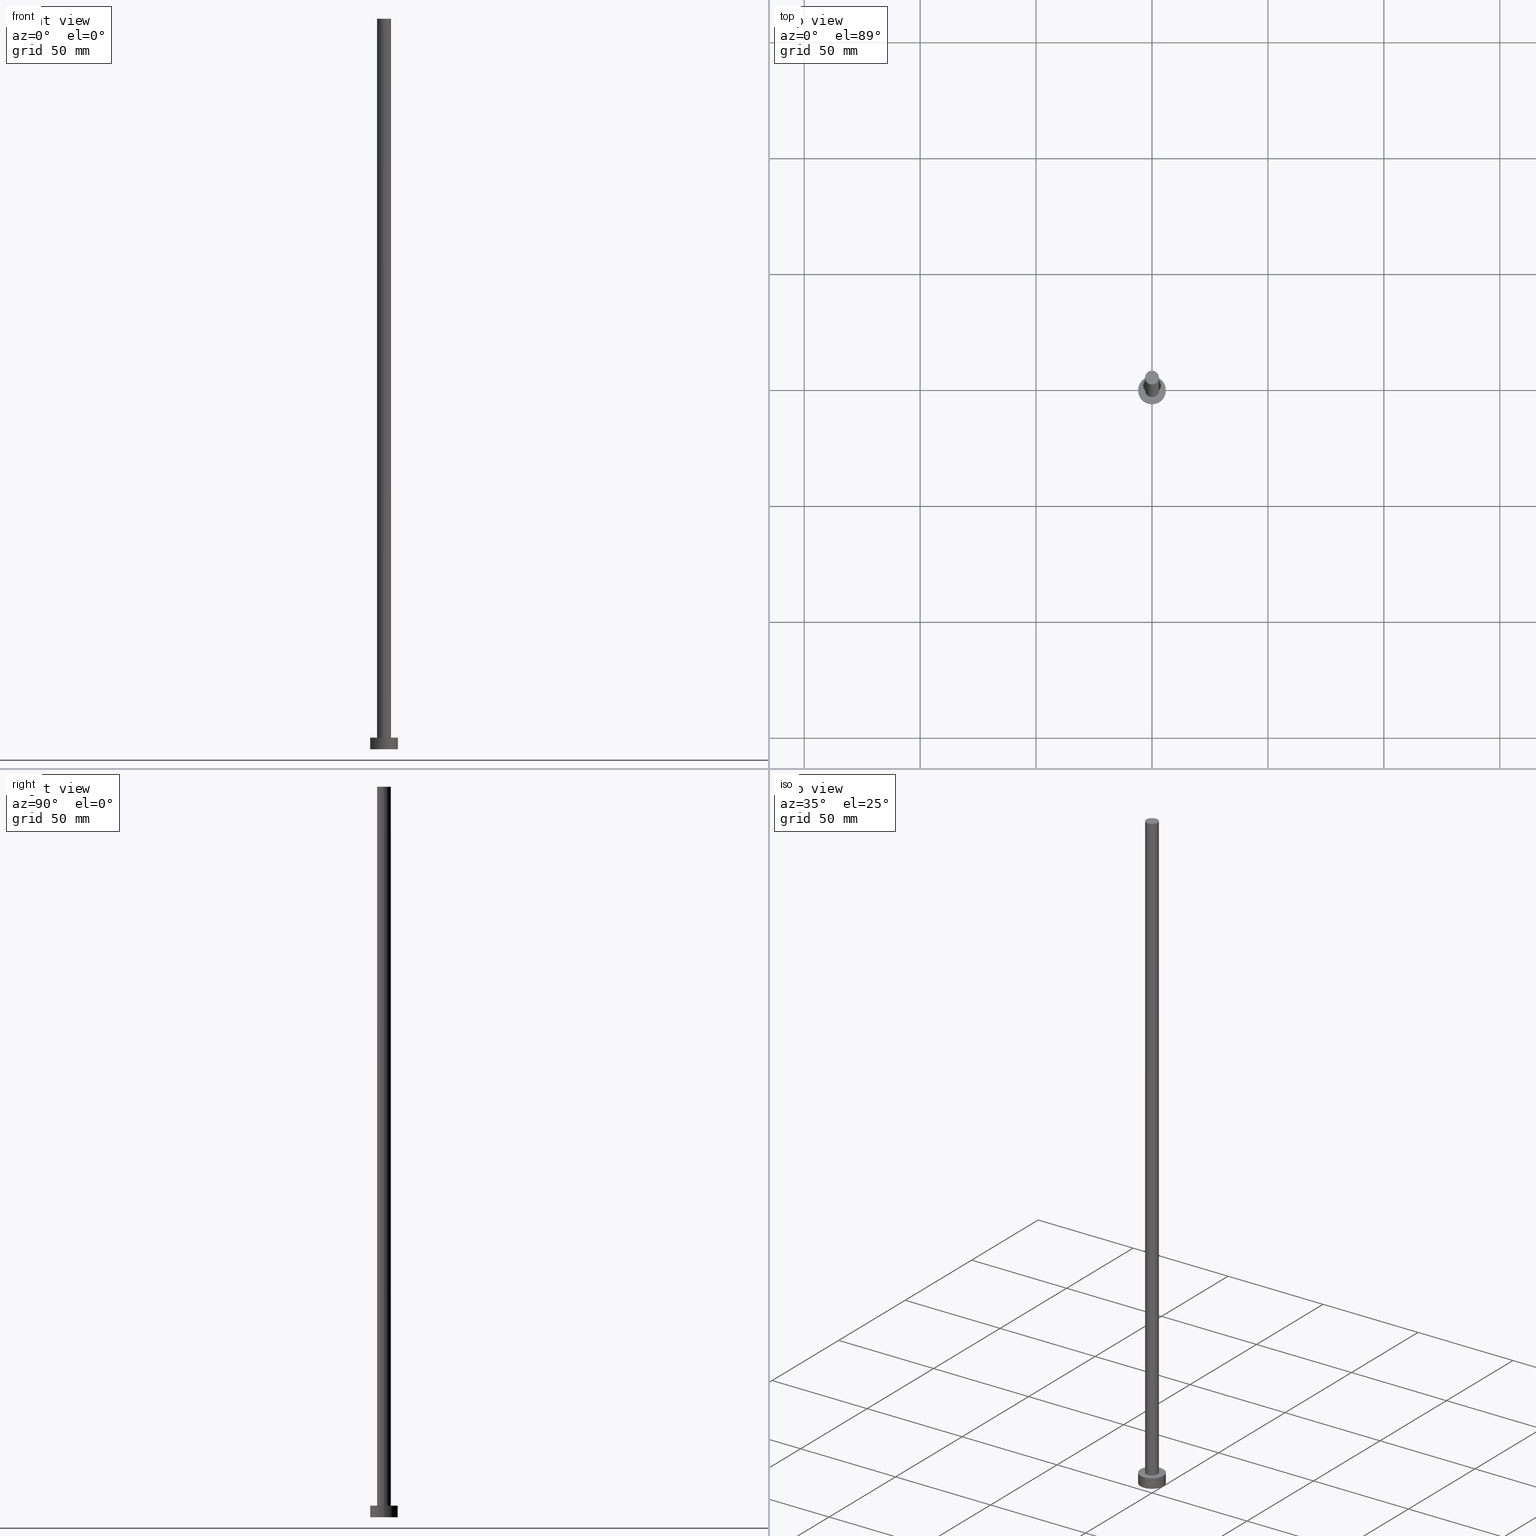
[diagram: canonical four-view strip — front | top / right | iso, engineering-drawing reading convention]
A machine part, canonical four-view strip (front | top / right | iso — engineering-drawing reading convention). The complete STEP part file that produces these views, byte-faithful:
ISO-10303-21;
HEADER;
FILE_DESCRIPTION (( 'STEP AP203' ),
    '1' );
FILE_NAME ('d4da.STEP',
    '2023-02-13T15:21:51',
    ( '' ),
    ( '' ),
    'SwSTEP 2.0',
    'SolidWorks 2019',
    '' );
FILE_SCHEMA (( 'CONFIG_CONTROL_DESIGN' ));
ENDSEC;

DATA;
#1 = DIRECTION ( 'NONE',  ( 0.000000000000000000, 0.000000000000000000, 1.000000000000000000 ) ) ;
#2 = CARTESIAN_POINT ( 'NONE',  ( 0.000000000000000000, 0.000000000000000000, 5.000000000000000000 ) ) ;
#3 = AXIS2_PLACEMENT_3D ( 'NONE', #29, #1, #170 ) ;
#4 = APPROVAL_DATE_TIME ( #192, #25 ) ;
#5 = CC_DESIGN_DATE_AND_TIME_ASSIGNMENT ( #66, #22, ( #185 ) ) ;
#6 = CALENDAR_DATE ( 2023, 13, 2 ) ;
#7 = CARTESIAN_POINT ( 'NONE',  ( 0.000000000000000000, 0.000000000000000000, 0.000000000000000000 ) ) ;
#8 = ADVANCED_FACE ( 'NONE', ( #31 ), #195, .F. ) ;
#9 = CYLINDRICAL_SURFACE ( 'NONE', #71, 3.000000000000000444 ) ;
#10 = ORIENTED_EDGE ( 'NONE', *, *, #92, .T. ) ;
#11 = DIRECTION ( 'NONE',  ( -1.000000000000000000, 0.000000000000000000, 0.000000000000000000 ) ) ;
#12 = DIRECTION ( 'NONE',  ( 1.000000000000000000, 0.000000000000000000, 0.000000000000000000 ) ) ;
#13 = FACE_OUTER_BOUND ( 'NONE', #183, .T. ) ;
#14 = ORIENTED_EDGE ( 'NONE', *, *, #161, .T. ) ;
#15 = CARTESIAN_POINT ( 'NONE',  ( 0.000000000000000000, 0.000000000000000000, 315.0000000000000000 ) ) ;
#16 = PRODUCT ( 'd4da', 'd4da', '', ( #51 ) ) ;
#17 = ORIENTED_EDGE ( 'NONE', *, *, #239, .T. ) ;
#18 = CARTESIAN_POINT ( 'NONE',  ( 0.000000000000000000, 0.000000000000000000, 0.000000000000000000 ) ) ;
#19 = CC_DESIGN_PERSON_AND_ORGANIZATION_ASSIGNMENT ( #243, #120, ( #185 ) ) ;
#20 = COORDINATED_UNIVERSAL_TIME_OFFSET ( 1, 0, .AHEAD. ) ;
#21 = FACE_OUTER_BOUND ( 'NONE', #118, .T. ) ;
#22 = DATE_TIME_ROLE ( 'classification_date' ) ;
#23 = APPROVAL ( #218, 'NEUR�EN�' ) ;
#24 = DIRECTION ( 'NONE',  ( -1.000000000000000000, 0.000000000000000000, 0.000000000000000000 ) ) ;
#25 = APPROVAL ( #138, 'NEUR�EN�' ) ;
#26 = DIRECTION ( 'NONE',  ( 1.000000000000000000, 0.000000000000000000, 0.000000000000000000 ) ) ;
#27 = VECTOR ( 'NONE', #178, 1000.000000000000000 ) ;
#28 = EDGE_CURVE ( 'NONE', #84, #98, #78, .T. ) ;
#29 = CARTESIAN_POINT ( 'NONE',  ( 0.000000000000000000, 0.000000000000000000, 5.000000000000000000 ) ) ;
#30 = DIRECTION ( 'NONE',  ( -0.000000000000000000, -0.000000000000000000, -1.000000000000000000 ) ) ;
#31 = FACE_OUTER_BOUND ( 'NONE', #160, .T. ) ;
#32 = EDGE_CURVE ( 'NONE', #40, #197, #144, .T. ) ;
#33 = CLOSED_SHELL ( 'NONE', ( #189, #90, #225, #238, #8, #231, #191 ) ) ;
#34 = LINE ( 'NONE', #117, #255 ) ;
#35 = ORIENTED_EDGE ( 'NONE', *, *, #32, .T. ) ;
#36 = APPROVAL_PERSON_ORGANIZATION ( #115, #165, #177 ) ;
#37 = PRODUCT_DEFINITION_FORMATION_WITH_SPECIFIED_SOURCE ( 'LIBOVOLN�', '', #16, .NOT_KNOWN. ) ;
#38 = CC_DESIGN_PERSON_AND_ORGANIZATION_ASSIGNMENT ( #55, #233, ( #16 ) ) ;
#39 = CARTESIAN_POINT ( 'NONE',  ( 3.000000000000000444, 3.673940397442060361E-16, 5.000000000000000000 ) ) ;
#40 = VERTEX_POINT ( 'NONE', #219 ) ;
#41 = DIRECTION ( 'NONE',  ( -0.000000000000000000, -0.000000000000000000, -1.000000000000000000 ) ) ;
#42 = CARTESIAN_POINT ( 'NONE',  ( 0.000000000000000000, 0.000000000000000000, 0.000000000000000000 ) ) ;
#43 = EDGE_CURVE ( 'NONE', #197, #40, #210, .T. ) ;
#44 = FACE_OUTER_BOUND ( 'NONE', #140, .T. ) ;
#45 = AXIS2_PLACEMENT_3D ( 'NONE', #194, #30, #11 ) ;
#46 = FACE_OUTER_BOUND ( 'NONE', #99, .T. ) ;
#47 = DIRECTION ( 'NONE',  ( 1.000000000000000000, 0.000000000000000000, 0.000000000000000000 ) ) ;
#48 = EDGE_CURVE ( 'NONE', #137, #98, #206, .T. ) ;
#49 = DIRECTION ( 'NONE',  ( 1.000000000000000000, 0.000000000000000000, 0.000000000000000000 ) ) ;
#50 = PERSON ( 'NEUR�EN�', 'NEUR�EN�', 'NEUR�EN�', ('NEUR�EN�'), ('NEUR�EN�'), ('NEUR�EN�') ) ;
#51 = MECHANICAL_CONTEXT ( 'NONE', #107, 'mechanical' ) ;
#52 = FACE_OUTER_BOUND ( 'NONE', #234, .T. ) ;
#53 = PRODUCT_RELATED_PRODUCT_CATEGORY ( 'detail', '', ( #16 ) ) ;
#54 = ORIENTED_EDGE ( 'NONE', *, *, #168, .F. ) ;
#55 = PERSON_AND_ORGANIZATION ( #50, #109 ) ;
#56 = LINE ( 'NONE', #62, #27 ) ;
#57 = DIRECTION ( 'NONE',  ( -0.000000000000000000, -0.000000000000000000, -1.000000000000000000 ) ) ;
#58 = DIRECTION ( 'NONE',  ( 1.000000000000000000, 0.000000000000000000, 0.000000000000000000 ) ) ;
#59 = ORIENTED_EDGE ( 'NONE', *, *, #32, .F. ) ;
#60 = EDGE_CURVE ( 'NONE', #100, #249, #167, .T. ) ;
#61 = CALENDAR_DATE ( 2023, 13, 2 ) ;
#62 = CARTESIAN_POINT ( 'NONE',  ( -3.000000000000000444, 0.000000000000000000, 315.0000000000000000 ) ) ;
#63 = ORIENTED_EDGE ( 'NONE', *, *, #69, .T. ) ;
#64 = ORIENTED_EDGE ( 'NONE', *, *, #161, .F. ) ;
#65 = CARTESIAN_POINT ( 'NONE',  ( 0.000000000000000000, 0.000000000000000000, 315.0000000000000000 ) ) ;
#66 = DATE_AND_TIME ( #223, #207 ) ;
#67 = CARTESIAN_POINT ( 'NONE',  ( 0.000000000000000000, 0.000000000000000000, 5.000000000000000000 ) ) ;
#68 = EDGE_CURVE ( 'NONE', #98, #137, #201, .T. ) ;
#69 = EDGE_CURVE ( 'NONE', #200, #137, #56, .T. ) ;
#70 = AXIS2_PLACEMENT_3D ( 'NONE', #18, #143, #124 ) ;
#71 = AXIS2_PLACEMENT_3D ( 'NONE', #121, #226, #141 ) ;
#72 = APPROVAL_PERSON_ORGANIZATION ( #135, #25, #213 ) ;
#73 = PERSON_AND_ORGANIZATION_ROLE ( 'creator' ) ;
#74 = LINE ( 'NONE', #174, #227 ) ;
#75 = CIRCLE ( 'NONE', #83, 3.000000000000000444 ) ;
#76 = DIRECTION ( 'NONE',  ( 1.000000000000000000, 0.000000000000000000, -0.000000000000000000 ) ) ;
#77 = CARTESIAN_POINT ( 'NONE',  ( 0.000000000000000000, 0.000000000000000000, 0.000000000000000000 ) ) ;
#78 = LINE ( 'NONE', #156, #85 ) ;
#79 = CARTESIAN_POINT ( 'NONE',  ( 0.000000000000000000, 0.000000000000000000, 5.000000000000000000 ) ) ;
#80 = ORIENTED_EDGE ( 'NONE', *, *, #48, .F. ) ;
#81 = APPROVAL_DATE_TIME ( #245, #165 ) ;
#82 = ORIENTED_EDGE ( 'NONE', *, *, #43, .F. ) ;
#83 = AXIS2_PLACEMENT_3D ( 'NONE', #15, #103, #182 ) ;
#84 = VERTEX_POINT ( 'NONE', #136 ) ;
#85 = VECTOR ( 'NONE', #57, 1000.000000000000000 ) ;
#86 = DIRECTION ( 'NONE',  ( 1.000000000000000000, 0.000000000000000000, 0.000000000000000000 ) ) ;
#87 = AXIS2_PLACEMENT_3D ( 'NONE', #208, #128, #26 ) ;
#88 = APPROVAL_DATE_TIME ( #253, #23 ) ;
#89 = DIRECTION ( 'NONE',  ( 0.000000000000000000, 0.000000000000000000, 1.000000000000000000 ) ) ;
#90 = ADVANCED_FACE ( 'NONE', ( #13 ), #139, .T. ) ;
#91 = DIRECTION ( 'NONE',  ( 0.000000000000000000, 0.000000000000000000, 1.000000000000000000 ) ) ;
#92 = EDGE_CURVE ( 'NONE', #100, #197, #34, .T. ) ;
#93 = AXIS2_PLACEMENT_3D ( 'NONE', #2, #242, #49 ) ;
#94 = COORDINATED_UNIVERSAL_TIME_OFFSET ( 1, 0, .AHEAD. ) ;
#95 = APPROVAL_PERSON_ORGANIZATION ( #251, #23, #108 ) ;
#96 = SECURITY_CLASSIFICATION_LEVEL ( 'unclassified' ) ;
#97 = CARTESIAN_POINT ( 'NONE',  ( -3.000000000000000444, 0.000000000000000000, 5.000000000000000000 ) ) ;
#98 = VERTEX_POINT ( 'NONE', #39 ) ;
#99 = EDGE_LOOP ( 'NONE', ( #17, #14 ) ) ;
#100 = VERTEX_POINT ( 'NONE', #131 ) ;
#101 = APPLICATION_PROTOCOL_DEFINITION ( 'international standard', 'config_control_design', 1994, #107 ) ;
#102 = ORIENTED_EDGE ( 'NONE', *, *, #28, .T. ) ;
#103 = DIRECTION ( 'NONE',  ( 0.000000000000000000, 0.000000000000000000, 1.000000000000000000 ) ) ;
#104 = ORIENTED_EDGE ( 'NONE', *, *, #68, .T. ) ;
#105 = AXIS2_PLACEMENT_3D ( 'NONE', #67, #224, #24 ) ;
#106 = CYLINDRICAL_SURFACE ( 'NONE', #105, 6.000000000000000888 ) ;
#107 = APPLICATION_CONTEXT ( 'configuration controlled 3d designs of mechanical parts and assemblies' ) ;
#108 = APPROVAL_ROLE ( '' ) ;
#109 = ORGANIZATION ( 'NEUR�EN�', 'NEUR�EN�', '' ) ;
#110 =( NAMED_UNIT ( * ) SI_UNIT ( $, .STERADIAN. ) SOLID_ANGLE_UNIT ( ) );
#111 = DIRECTION ( 'NONE',  ( 1.000000000000000000, 0.000000000000000000, 0.000000000000000000 ) ) ;
#112 = AXIS2_PLACEMENT_3D ( 'NONE', #250, #237, #159 ) ;
#113 = DIRECTION ( 'NONE',  ( 0.000000000000000000, 0.000000000000000000, 1.000000000000000000 ) ) ;
#114 = LOCAL_TIME ( 16, 21, 51.00000000000000000, #214 ) ;
#115 = PERSON_AND_ORGANIZATION ( #50, #109 ) ;
#116 = ORIENTED_EDGE ( 'NONE', *, *, #168, .T. ) ;
#117 = CARTESIAN_POINT ( 'NONE',  ( -6.000000000000000888, 0.000000000000000000, 5.000000000000000000 ) ) ;
#118 = EDGE_LOOP ( 'NONE', ( #54, #180, #10, #175 ) ) ;
#119 = CC_DESIGN_DATE_AND_TIME_ASSIGNMENT ( #193, #132, ( #181 ) ) ;
#120 = PERSON_AND_ORGANIZATION_ROLE ( 'classification_officer' ) ;
#121 = CARTESIAN_POINT ( 'NONE',  ( 0.000000000000000000, 0.000000000000000000, 315.0000000000000000 ) ) ;
#122 = FACE_BOUND ( 'NONE', #142, .T. ) ;
#123 = AXIS2_PLACEMENT_3D ( 'NONE', #65, #41, #205 ) ;
#124 = DIRECTION ( 'NONE',  ( 1.000000000000000000, 0.000000000000000000, 0.000000000000000000 ) ) ;
#125 = MANIFOLD_SOLID_BREP ( 'P�idat vysunut�m3', #33 ) ;
#126 = AXIS2_PLACEMENT_3D ( 'NONE', #79, #199, #58 ) ;
#127 = CARTESIAN_POINT ( 'NONE',  ( 6.000000000000000888, 7.347880794884120722E-16, 5.000000000000000000 ) ) ;
#128 = DIRECTION ( 'NONE',  ( 0.000000000000000000, 0.000000000000000000, 1.000000000000000000 ) ) ;
#129 = CC_DESIGN_PERSON_AND_ORGANIZATION_ASSIGNMENT ( #232, #157, ( #181 ) ) ;
#130 = PERSON_AND_ORGANIZATION_ROLE ( 'design_supplier' ) ;
#131 = CARTESIAN_POINT ( 'NONE',  ( -6.000000000000000888, 0.000000000000000000, 5.000000000000000000 ) ) ;
#132 = DATE_TIME_ROLE ( 'creation_date' ) ;
#133 = CIRCLE ( 'NONE', #87, 6.000000000000000888 ) ;
#134 = ORIENTED_EDGE ( 'NONE', *, *, #28, .F. ) ;
#135 = PERSON_AND_ORGANIZATION ( #50, #109 ) ;
#136 = CARTESIAN_POINT ( 'NONE',  ( 3.000000000000000444, 3.673940397442060361E-16, 315.0000000000000000 ) ) ;
#137 = VERTEX_POINT ( 'NONE', #97 ) ;
#138 = APPROVAL_STATUS ( 'not_yet_approved' ) ;
#139 = CYLINDRICAL_SURFACE ( 'NONE', #45, 6.000000000000000888 ) ;
#140 = EDGE_LOOP ( 'NONE', ( #134, #158, #63, #176 ) ) ;
#141 = DIRECTION ( 'NONE',  ( -1.000000000000000000, 0.000000000000000000, 0.000000000000000000 ) ) ;
#142 = EDGE_LOOP ( 'NONE', ( #80, #198 ) ) ;
#143 = DIRECTION ( 'NONE',  ( 0.000000000000000000, 0.000000000000000000, 1.000000000000000000 ) ) ;
#144 = CIRCLE ( 'NONE', #70, 6.000000000000000888 ) ;
#145 = PLANE ( 'NONE',  #112 ) ;
#146 = CIRCLE ( 'NONE', #203, 3.000000000000000444 ) ;
#147 = CC_DESIGN_PERSON_AND_ORGANIZATION_ASSIGNMENT ( #171, #73, ( #37 ) ) ;
#148 = CARTESIAN_POINT ( 'NONE',  ( 0.000000000000000000, 0.000000000000000000, 315.0000000000000000 ) ) ;
#149 = CC_DESIGN_APPROVAL ( #25, ( #37 ) ) ;
#150 = AXIS2_PLACEMENT_3D ( 'NONE', #77, #113, #12 ) ;
#151 = LOCAL_TIME ( 16, 21, 51.00000000000000000, #94 ) ;
#152 = APPLICATION_CONTEXT ( 'configuration controlled 3d designs of mechanical parts and assemblies' ) ;
#153 = PERSON_AND_ORGANIZATION ( #50, #109 ) ;
#154 = DIRECTION ( 'NONE',  ( -0.000000000000000000, -0.000000000000000000, -1.000000000000000000 ) ) ;
#155 = CALENDAR_DATE ( 2023, 13, 2 ) ;
#156 = CARTESIAN_POINT ( 'NONE',  ( 3.000000000000000444, 3.673940397442060361E-16, 315.0000000000000000 ) ) ;
#157 = PERSON_AND_ORGANIZATION_ROLE ( 'creator' ) ;
#158 = ORIENTED_EDGE ( 'NONE', *, *, #239, .F. ) ;
#159 = DIRECTION ( 'NONE',  ( 1.000000000000000000, 0.000000000000000000, -0.000000000000000000 ) ) ;
#160 = EDGE_LOOP ( 'NONE', ( #82, #59 ) ) ;
#161 = EDGE_CURVE ( 'NONE', #84, #200, #75, .T. ) ;
#162 = PRODUCT_DEFINITION_SHAPE ( 'NONE', 'NONE',  #181 ) ;
#163 = SHAPE_DEFINITION_REPRESENTATION ( #162, #236 ) ;
#164 = CARTESIAN_POINT ( 'NONE',  ( 0.000000000000000000, 0.000000000000000000, 5.000000000000000000 ) ) ;
#165 = APPROVAL ( #196, 'NEUR�EN�' ) ;
#166 = PLANE ( 'NONE',  #3 ) ;
#167 = CIRCLE ( 'NONE', #93, 6.000000000000000888 ) ;
#168 = EDGE_CURVE ( 'NONE', #249, #40, #74, .T. ) ;
#169 = AXIS2_PLACEMENT_3D ( 'NONE', #42, #89, #86 ) ;
#170 = DIRECTION ( 'NONE',  ( 1.000000000000000000, 0.000000000000000000, -0.000000000000000000 ) ) ;
#171 = PERSON_AND_ORGANIZATION ( #50, #109 ) ;
#172 = CC_DESIGN_APPROVAL ( #165, ( #181 ) ) ;
#173 = APPLICATION_PROTOCOL_DEFINITION ( 'international standard', 'config_control_design', 1994, #152 ) ;
#174 = CARTESIAN_POINT ( 'NONE',  ( 6.000000000000000888, 7.347880794884120722E-16, 5.000000000000000000 ) ) ;
#175 = ORIENTED_EDGE ( 'NONE', *, *, #43, .T. ) ;
#176 = ORIENTED_EDGE ( 'NONE', *, *, #48, .T. ) ;
#177 = APPROVAL_ROLE ( '' ) ;
#178 = DIRECTION ( 'NONE',  ( -0.000000000000000000, -0.000000000000000000, -1.000000000000000000 ) ) ;
#179 = ORIENTED_EDGE ( 'NONE', *, *, #252, .T. ) ;
#180 = ORIENTED_EDGE ( 'NONE', *, *, #60, .F. ) ;
#181 = PRODUCT_DEFINITION ( 'NEZN�M�', '', #37, #228 ) ;
#182 = DIRECTION ( 'NONE',  ( 1.000000000000000000, 0.000000000000000000, 0.000000000000000000 ) ) ;
#183 = EDGE_LOOP ( 'NONE', ( #248, #116, #35, #229 ) ) ;
#184 = CYLINDRICAL_SURFACE ( 'NONE', #123, 3.000000000000000444 ) ;
#185 = SECURITY_CLASSIFICATION ( '', '', #96 ) ;
#186 = COORDINATED_UNIVERSAL_TIME_OFFSET ( 1, 0, .AHEAD. ) ;
#187 = AXIS2_PLACEMENT_3D ( 'NONE', #7, #244, #76 ) ;
#188 = CALENDAR_DATE ( 2023, 13, 2 ) ;
#189 = ADVANCED_FACE ( 'NONE', ( #52 ), #9, .T. ) ;
#190 = AXIS2_PLACEMENT_3D ( 'NONE', #164, #91, #111 ) ;
#191 = ADVANCED_FACE ( 'NONE', ( #46 ), #145, .T. ) ;
#192 = DATE_AND_TIME ( #6, #114 ) ;
#193 = DATE_AND_TIME ( #61, #151 ) ;
#194 = CARTESIAN_POINT ( 'NONE',  ( 0.000000000000000000, 0.000000000000000000, 5.000000000000000000 ) ) ;
#195 = PLANE ( 'NONE',  #187 ) ;
#196 = APPROVAL_STATUS ( 'not_yet_approved' ) ;
#197 = VERTEX_POINT ( 'NONE', #221 ) ;
#198 = ORIENTED_EDGE ( 'NONE', *, *, #68, .F. ) ;
#199 = DIRECTION ( 'NONE',  ( 0.000000000000000000, 0.000000000000000000, 1.000000000000000000 ) ) ;
#200 = VERTEX_POINT ( 'NONE', #217 ) ;
#201 = CIRCLE ( 'NONE', #126, 3.000000000000000444 ) ;
#202 = FACE_OUTER_BOUND ( 'NONE', #216, .T. ) ;
#203 = AXIS2_PLACEMENT_3D ( 'NONE', #148, #254, #47 ) ;
#204 = LOCAL_TIME ( 16, 21, 51.00000000000000000, #20 ) ;
#205 = DIRECTION ( 'NONE',  ( -1.000000000000000000, 0.000000000000000000, 0.000000000000000000 ) ) ;
#206 = CIRCLE ( 'NONE', #190, 3.000000000000000444 ) ;
#207 = LOCAL_TIME ( 16, 21, 51.00000000000000000, #186 ) ;
#208 = CARTESIAN_POINT ( 'NONE',  ( 0.000000000000000000, 0.000000000000000000, 5.000000000000000000 ) ) ;
#209 =( GEOMETRIC_REPRESENTATION_CONTEXT ( 3 ) GLOBAL_UNCERTAINTY_ASSIGNED_CONTEXT ( ( #247 ) ) GLOBAL_UNIT_ASSIGNED_CONTEXT ( ( #240, #241, #110 ) ) REPRESENTATION_CONTEXT ( 'NONE', 'WORKASPACE' ) );
#210 = CIRCLE ( 'NONE', #169, 6.000000000000000888 ) ;
#211 = COORDINATED_UNIVERSAL_TIME_OFFSET ( 1, 0, .AHEAD. ) ;
#212 = CC_DESIGN_SECURITY_CLASSIFICATION ( #185, ( #37 ) ) ;
#213 = APPROVAL_ROLE ( '' ) ;
#214 = COORDINATED_UNIVERSAL_TIME_OFFSET ( 1, 0, .AHEAD. ) ;
#215 = DIRECTION ( 'NONE',  ( -0.000000000000000000, -0.000000000000000000, -1.000000000000000000 ) ) ;
#216 = EDGE_LOOP ( 'NONE', ( #230, #179 ) ) ;
#217 = CARTESIAN_POINT ( 'NONE',  ( -3.000000000000000444, 0.000000000000000000, 315.0000000000000000 ) ) ;
#218 = APPROVAL_STATUS ( 'not_yet_approved' ) ;
#219 = CARTESIAN_POINT ( 'NONE',  ( 6.000000000000000888, 7.347880794884120722E-16, 0.000000000000000000 ) ) ;
#220 = CC_DESIGN_PERSON_AND_ORGANIZATION_ASSIGNMENT ( #153, #130, ( #37 ) ) ;
#221 = CARTESIAN_POINT ( 'NONE',  ( -6.000000000000000888, 0.000000000000000000, 0.000000000000000000 ) ) ;
#222 = LOCAL_TIME ( 16, 21, 51.00000000000000000, #211 ) ;
#223 = CALENDAR_DATE ( 2023, 13, 2 ) ;
#224 = DIRECTION ( 'NONE',  ( -0.000000000000000000, -0.000000000000000000, -1.000000000000000000 ) ) ;
#225 = ADVANCED_FACE ( 'NONE', ( #21 ), #106, .T. ) ;
#226 = DIRECTION ( 'NONE',  ( -0.000000000000000000, -0.000000000000000000, -1.000000000000000000 ) ) ;
#227 = VECTOR ( 'NONE', #154, 1000.000000000000000 ) ;
#228 = DESIGN_CONTEXT ( 'detailed design', #152, 'design' ) ;
#229 = ORIENTED_EDGE ( 'NONE', *, *, #92, .F. ) ;
#230 = ORIENTED_EDGE ( 'NONE', *, *, #60, .T. ) ;
#231 = ADVANCED_FACE ( 'NONE', ( #44 ), #184, .T. ) ;
#232 = PERSON_AND_ORGANIZATION ( #50, #109 ) ;
#233 = PERSON_AND_ORGANIZATION_ROLE ( 'design_owner' ) ;
#234 = EDGE_LOOP ( 'NONE', ( #64, #102, #104, #246 ) ) ;
#235 = CC_DESIGN_APPROVAL ( #23, ( #185 ) ) ;
#236 = ADVANCED_BREP_SHAPE_REPRESENTATION ( 'd4da', ( #125, #150 ), #209 ) ;
#237 = DIRECTION ( 'NONE',  ( 0.000000000000000000, 0.000000000000000000, 1.000000000000000000 ) ) ;
#238 = ADVANCED_FACE ( 'NONE', ( #122, #202 ), #166, .T. ) ;
#239 = EDGE_CURVE ( 'NONE', #200, #84, #146, .T. ) ;
#240 =( LENGTH_UNIT ( ) NAMED_UNIT ( * ) SI_UNIT ( .MILLI., .METRE. ) );
#241 =( NAMED_UNIT ( * ) PLANE_ANGLE_UNIT ( ) SI_UNIT ( $, .RADIAN. ) );
#242 = DIRECTION ( 'NONE',  ( 0.000000000000000000, 0.000000000000000000, 1.000000000000000000 ) ) ;
#243 = PERSON_AND_ORGANIZATION ( #50, #109 ) ;
#244 = DIRECTION ( 'NONE',  ( 0.000000000000000000, 0.000000000000000000, 1.000000000000000000 ) ) ;
#245 = DATE_AND_TIME ( #155, #222 ) ;
#246 = ORIENTED_EDGE ( 'NONE', *, *, #69, .F. ) ;
#247 = UNCERTAINTY_MEASURE_WITH_UNIT (LENGTH_MEASURE( 1.000000000000000082E-05 ), #240, 'distance_accuracy_value', 'NONE');
#248 = ORIENTED_EDGE ( 'NONE', *, *, #252, .F. ) ;
#249 = VERTEX_POINT ( 'NONE', #127 ) ;
#250 = CARTESIAN_POINT ( 'NONE',  ( 0.000000000000000000, 0.000000000000000000, 315.0000000000000000 ) ) ;
#251 = PERSON_AND_ORGANIZATION ( #50, #109 ) ;
#252 = EDGE_CURVE ( 'NONE', #249, #100, #133, .T. ) ;
#253 = DATE_AND_TIME ( #188, #204 ) ;
#254 = DIRECTION ( 'NONE',  ( 0.000000000000000000, 0.000000000000000000, 1.000000000000000000 ) ) ;
#255 = VECTOR ( 'NONE', #215, 1000.000000000000000 ) ;
ENDSEC;
END-ISO-10303-21;
